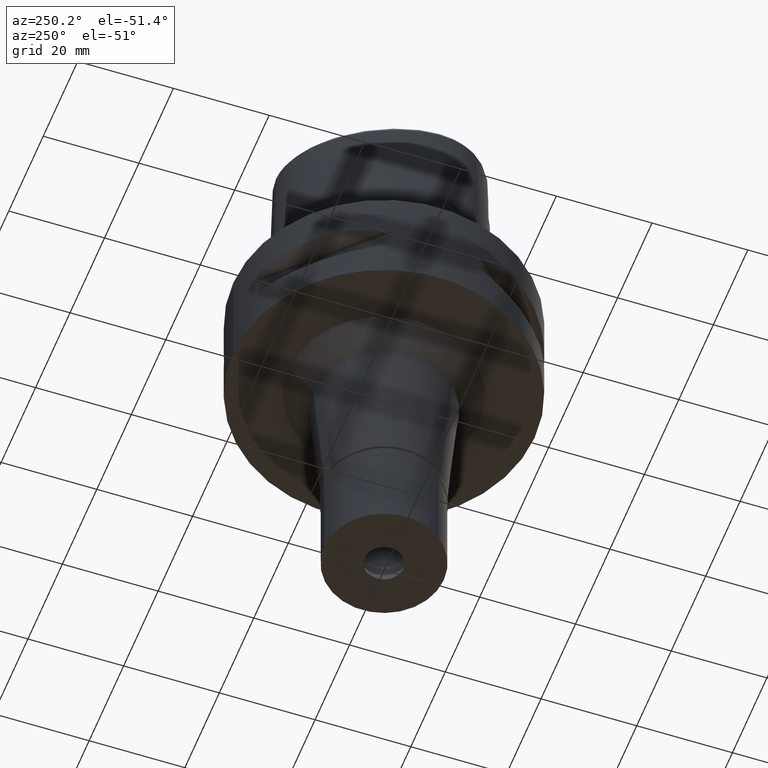
[diagram: clean part render]
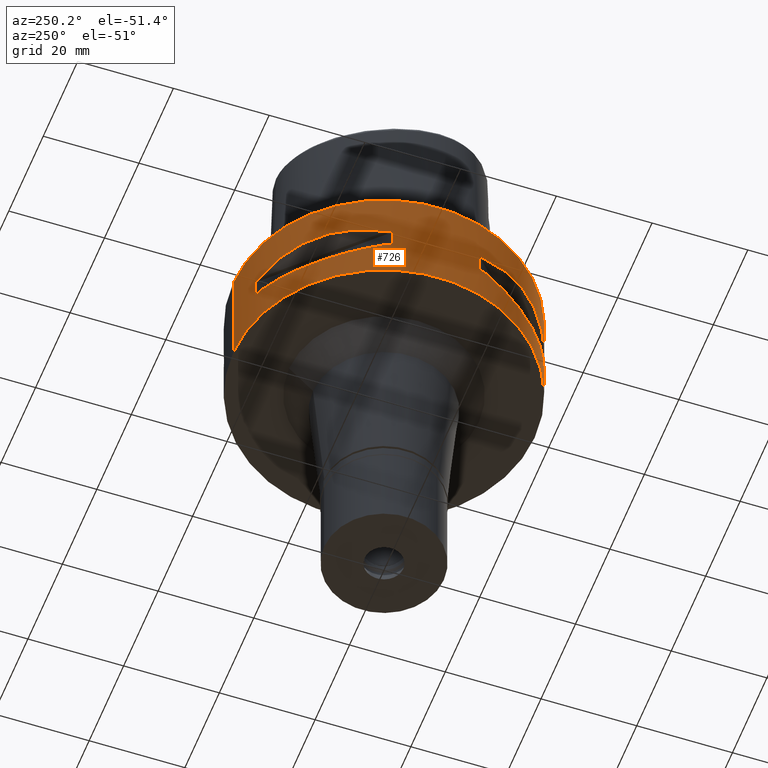
[diagram: same view with one face highlighted and labeled with its STEP entity id]
A machine part, auxiliary view. The second image highlights one B-rep face of the part: STEP entity #726.
In plain terms, the highlighted cylindrical surface (partial cylindrical patch) has radius 31.5 mm, axis along (0, 0, -1).
Its self-contained STEP definition (entity closure, byte-faithful):
#2 = CARTESIAN_POINT ( 'NONE',  ( -10.44775724750000023, 29.71690375017999841, -14.05000000000000071 ) ) ;
#17 = ORIENTED_EDGE ( 'NONE', *, *, #1456, .T. ) ;
#36 = DIRECTION ( 'NONE',  ( -0.3316748332540863653, 0.9433937698468619626, 0.0000000000000000000 ) ) ;
#76 = CARTESIAN_POINT ( 'NONE',  ( -28.91382665368626093, 12.73197616788979047, -14.65467361754097197 ) ) ;
#96 = CARTESIAN_POINT ( 'NONE',  ( -23.08532645888017854, 21.46242677077873751, -15.83938991065184076 ) ) ;
#119 = VERTEX_POINT ( 'NONE', #2406 ) ;
#149 = DIRECTION ( 'NONE',  ( 0.0000000000000000000, 0.0000000000000000000, -1.000000000000000000 ) ) ;
#158 = CARTESIAN_POINT ( 'NONE',  ( -17.14106442934810204, -26.42800887047570058, -15.43984550238532982 ) ) ;
#179 = VERTEX_POINT ( 'NONE', #1749 ) ;
#207 = VECTOR ( 'NONE', #2940, 1000.000000000000000 ) ;
#208 = EDGE_CURVE ( 'NONE', #3789, #1629, #4393, .T. ) ;
#209 = CARTESIAN_POINT ( 'NONE',  ( -27.64634172018421410, -15.11986997309601577, -15.11207862403482238 ) ) ;
#210 = CARTESIAN_POINT ( 'NONE',  ( 0.0000000000000000000, 1.266774649037999887E-14, -14.05000000000000071 ) ) ;
#226 = CARTESIAN_POINT ( 'NONE',  ( 0.0000000000000000000, 1.266774649037999887E-14, 0.0000000000000000000 ) ) ;
#256 = FACE_BOUND ( 'NONE', #2299, .T. ) ;
#296 = CIRCLE ( 'NONE', #4079, 31.50000000000001776 ) ;
#302 = VECTOR ( 'NONE', #3461, 1000.000000000000000 ) ;
#317 = CARTESIAN_POINT ( 'NONE',  ( 0.0000000000000000000, 1.266774649037999887E-14, 3.439999999999999947 ) ) ;
#324 = CARTESIAN_POINT ( 'NONE',  ( -30.19251670572000279, -8.981198972019999616, -9.950000000000001066 ) ) ;
#394 = CARTESIAN_POINT ( 'NONE',  ( -16.03138450077636534, 27.11872488589498786, -15.26880420107476333 ) ) ;
#427 = ORIENTED_EDGE ( 'NONE', *, *, #2201, .T. ) ;
#444 = B_SPLINE_CURVE_WITH_KNOTS ( 'NONE', 3,
 ( #2, #821, #4518, #2669, #394, #4592, #4543, #2694, #1865, #1940, #769, #1885, #96, #3403, #1590, #1518, #1153, #1200, #2340, #4173, #3459, #2286, #76, #3852 ),
 .UNSPECIFIED., .F., .F.,
 ( 4, 1, 1, 1, 1, 1, 2, 2, 2, 1, 1, 1, 1, 1, 2, 2, 4 ),
 ( 0.0000000000000000000, 0.1249999999999950040, 0.1874999999999924505, 0.2187499999999911737, 0.2343749999999902855, 0.2421874999999899802, 0.2460937499999900080, 0.2499999999999900080, 0.4999999999999917843, 0.6249999999999925615, 0.6874999999999925615, 0.7187499999999924505, 0.7343749999999926725, 0.7421874999999927836, 0.7460937499999928946, 0.7499999999999931166, 1.000000000000000000 ),
 .UNSPECIFIED. ) ;
#451 = CARTESIAN_POINT ( 'NONE',  ( -30.19251670572000279, 8.981198972019999616, -14.05000000000000071 ) ) ;
#477 = ORIENTED_EDGE ( 'NONE', *, *, #768, .T. ) ;
#500 = CARTESIAN_POINT ( 'NONE',  ( -17.35163608579889072, -26.29071741523761929, -15.46976201925527761 ) ) ;
#511 = CARTESIAN_POINT ( 'NONE',  ( -10.44775724750000023, -29.71690375017999841, -9.949999999998999201 ) ) ;
#528 = EDGE_LOOP ( 'NONE', ( #895, #2047, #17, #427 ) ) ;
#572 = DIRECTION ( 'NONE',  ( -0.3316748332540863653, -0.9433937698468619626, 0.0000000000000000000 ) ) ;
#581 = CARTESIAN_POINT ( 'NONE',  ( -29.71690375017999841, 10.44775724750000023, -9.949999999998999201 ) ) ;
#585 = VERTEX_POINT ( 'NONE', #2698 ) ;
#589 = CARTESIAN_POINT ( 'NONE',  ( -26.70521063584532229, -16.70616724745790549, -15.37546661817682292 ) ) ;
#664 = VECTOR ( 'NONE', #2925, 1000.000000000000000 ) ;
#726 = ADVANCED_FACE ( 'NONE', ( #2601, #256, #1042 ), #2177, .T. ) ;
#728 = EDGE_CURVE ( 'NONE', #1433, #4583, #2243, .T. ) ;
#731 = CARTESIAN_POINT ( 'NONE',  ( -30.19251670572000279, 8.981198972017999438, -9.950000000000001066 ) ) ;
#744 = CIRCLE ( 'NONE', #1928, 31.50000000000000711 ) ;
#763 = B_SPLINE_CURVE_WITH_KNOTS ( 'NONE', 3,
 ( #1274, #3977, #2752, #2365, #4643, #3953, #4350, #875, #3233, #581 ),
 .UNSPECIFIED., .F., .F.,
 ( 4, 2, 2, 2, 4 ),
 ( 0.0000000000000000000, 0.2500000000000000000, 0.5000000000000000000, 0.7500000000000000000, 1.000000000000000000 ),
 .UNSPECIFIED. ) ;
#768 = EDGE_CURVE ( 'NONE', #4063, #2687, #3121, .T. ) ;
#769 = CARTESIAN_POINT ( 'NONE',  ( -18.86897208073744991, 25.32725744467937545, -15.69588095933747240 ) ) ;
#821 = CARTESIAN_POINT ( 'NONE',  ( -11.58970337493613378, 29.31542262584994418, -14.35229357166721265 ) ) ;
#828 = CARTESIAN_POINT ( 'NONE',  ( -8.981198972019999616, 30.19251670572000279, -9.950000000000001066 ) ) ;
#840 = ORIENTED_EDGE ( 'NONE', *, *, #208, .F. ) ;
#860 = CARTESIAN_POINT ( 'NONE',  ( -21.46242677078364025, -23.08532645888299939, -15.83938991065501867 ) ) ;
#875 = CARTESIAN_POINT ( 'NONE',  ( -27.88210502980663819, 14.84430321584963330, -8.906184731949371880 ) ) ;
#886 = CARTESIAN_POINT ( 'NONE',  ( -20.18579225686653444, -24.23018836745773541, -15.78559396979401974 ) ) ;
#895 = ORIENTED_EDGE ( 'NONE', *, *, #1919, .T. ) ;
#934 = CARTESIAN_POINT ( 'NONE',  ( -29.71690375017999841, -10.44775724750000023, -9.949999999998999201 ) ) ;
#1002 = CARTESIAN_POINT ( 'NONE',  ( -29.71690375017999841, 10.44775724750000023, -14.05000000000000071 ) ) ;
#1025 = EDGE_CURVE ( 'NONE', #1824, #1292, #2191, .T. ) ;
#1042 = FACE_BOUND ( 'NONE', #1045, .T. ) ;
#1045 = EDGE_LOOP ( 'NONE', ( #4028, #4165, #2103, #4030, #4013, #2338, #2147, #1234 ) ) ;
#1071 = VECTOR ( 'NONE', #3992, 1000.000000000000000 ) ;
#1096 = EDGE_CURVE ( 'NONE', #3671, #1547, #444, .T. ) ;
#1101 = EDGE_CURVE ( 'NONE', #3058, #585, #3148, .T. ) ;
#1105 = DIRECTION ( 'NONE',  ( 0.0000000000000000000, 1.000000000000000000, 0.0000000000000000000 ) ) ;
#1126 = DIRECTION ( 'NONE',  ( 0.0000000000000000000, 0.0000000000000000000, 1.000000000000000000 ) ) ;
#1136 = EDGE_CURVE ( 'NONE', #3058, #4506, #2960, .T. ) ;
#1141 = AXIS2_PLACEMENT_3D ( 'NONE', #317, #1802, #3487 ) ;
#1153 = CARTESIAN_POINT ( 'NONE',  ( -26.29071741523646111, 17.35163608579689409, -15.46976201925398087 ) ) ;
#1168 = ORIENTED_EDGE ( 'NONE', *, *, #2002, .T. ) ;
#1173 = EDGE_CURVE ( 'NONE', #3789, #1547, #296, .T. ) ;
#1184 = CARTESIAN_POINT ( 'NONE',  ( 0.0000000000000000000, 1.266774649037999887E-14, -9.950000000000001066 ) ) ;
#1187 = CARTESIAN_POINT ( 'NONE',  ( -29.71690375017999841, 10.44775724750000023, -9.949999999998999201 ) ) ;
#1192 = ORIENTED_EDGE ( 'NONE', *, *, #3698, .T. ) ;
#1200 = CARTESIAN_POINT ( 'NONE',  ( -26.42800887047508240, 17.14106442934706820, -15.43984550238465836 ) ) ;
#1210 = DIRECTION ( 'NONE',  ( 0.0000000000000000000, 0.0000000000000000000, -1.000000000000000000 ) ) ;
#1234 = ORIENTED_EDGE ( 'NONE', *, *, #2401, .T. ) ;
#1235 = CARTESIAN_POINT ( 'NONE',  ( -29.31542262584746794, -11.58970337494326941, -14.35229357166913999 ) ) ;
#1271 = CARTESIAN_POINT ( 'NONE',  ( -25.37277178164059777, -18.81455742168903456, -8.309746333109711003 ) ) ;
#1274 = CARTESIAN_POINT ( 'NONE',  ( -10.44775724750000023, 29.71690375017999841, -9.949999999998999201 ) ) ;
#1283 = CARTESIAN_POINT ( 'NONE',  ( -10.44775724750000023, -29.71690375017999841, -14.05000000000000071 ) ) ;
#1292 = VERTEX_POINT ( 'NONE', #3074 ) ;
#1301 = VERTEX_POINT ( 'NONE', #3452 ) ;
#1306 = CARTESIAN_POINT ( 'NONE',  ( -14.89252659053665440, -27.86285265927818600, -15.10765629750852135 ) ) ;
#1316 = CARTESIAN_POINT ( 'NONE',  ( 0.0000000000000000000, 31.50000000000000000, 0.0000000000000000000 ) ) ;
#1350 = CARTESIAN_POINT ( 'NONE',  ( -8.981198972017999438, -30.19251670572000279, -14.05000000000000071 ) ) ;
#1377 = VECTOR ( 'NONE', #1868, 1000.000000000000000 ) ;
#1379 = ORIENTED_EDGE ( 'NONE', *, *, #3422, .T. ) ;
#1422 = CIRCLE ( 'NONE', #4120, 31.50000000000000711 ) ;
#1427 = ORIENTED_EDGE ( 'NONE', *, *, #1096, .F. ) ;
#1433 = VERTEX_POINT ( 'NONE', #324 ) ;
#1456 = EDGE_CURVE ( 'NONE', #1824, #179, #2967, .T. ) ;
#1499 = CARTESIAN_POINT ( 'NONE',  ( 0.0000000000000000000, 1.266774649037999887E-14, -14.05000000000000071 ) ) ;
#1518 = CARTESIAN_POINT ( 'NONE',  ( -26.01217882834653139, 17.76952662671834915, -15.52665221626015501 ) ) ;
#1547 = VERTEX_POINT ( 'NONE', #1002 ) ;
#1590 = CARTESIAN_POINT ( 'NONE',  ( -25.43927894891607622, 18.59229662064853983, -15.62866126334269623 ) ) ;
#1618 = CARTESIAN_POINT ( 'NONE',  ( -20.64154884324739214, -23.90617837150508507, -8.160613588476767433 ) ) ;
#1628 = B_SPLINE_CURVE_WITH_KNOTS ( 'NONE', 3,
 ( #1719, #1235, #2373, #209, #4292, #3590, #589, #4270, #4651, #3197, #2050, #4340, #860, #886, #3242, #3889, #500, #158, #4703, #3914, #2004, #1306, #4729, #1283 ),
 .UNSPECIFIED., .F., .F.,
 ( 4, 1, 1, 1, 1, 1, 2, 2, 2, 1, 1, 1, 1, 1, 2, 2, 4 ),
 ( 0.0000000000000000000, 0.1250000000000055511, 0.1875000000000083267, 0.2187500000000097977, 0.2343750000000106304, 0.2421875000000108247, 0.2460937500000108524, 0.2500000000000108802, 0.5000000000000087708, 0.6250000000000075495, 0.6875000000000071054, 0.7187500000000067724, 0.7343750000000066613, 0.7421875000000065503, 0.7460937500000062172, 0.7500000000000059952, 1.000000000000000000 ),
 .UNSPECIFIED. ) ;
#1629 = VERTEX_POINT ( 'NONE', #731 ) ;
#1710 = DIRECTION ( 'NONE',  ( 0.0000000000000000000, -1.000000000000000000, 0.0000000000000000000 ) ) ;
#1719 = CARTESIAN_POINT ( 'NONE',  ( -29.71690375017999841, -10.44775724750000023, -14.05000000000000071 ) ) ;
#1748 = ORIENTED_EDGE ( 'NONE', *, *, #1173, .T. ) ;
#1749 = CARTESIAN_POINT ( 'NONE',  ( 0.0000000000000000000, 31.50000000000000000, 0.0000000000000000000 ) ) ;
#1786 = EDGE_CURVE ( 'NONE', #1301, #585, #2180, .T. ) ;
#1802 = DIRECTION ( 'NONE',  ( 0.0000000000000000000, 0.0000000000000000000, -1.000000000000000000 ) ) ;
#1824 = VERTEX_POINT ( 'NONE', #2942 ) ;
#1865 = CARTESIAN_POINT ( 'NONE',  ( -16.86571563436579169, 26.60451452154777030, -15.39949295785988426 ) ) ;
#1868 = DIRECTION ( 'NONE',  ( 0.0000000000000000000, 0.0000000000000000000, -1.000000000000000000 ) ) ;
#1885 = CARTESIAN_POINT ( 'NONE',  ( -20.65093790435807364, 23.89673728056094859, -15.83935804902020550 ) ) ;
#1887 = DIRECTION ( 'NONE',  ( 0.0000000000000000000, 0.0000000000000000000, 1.000000000000000000 ) ) ;
#1897 = AXIS2_PLACEMENT_3D ( 'NONE', #1499, #1210, #36 ) ;
#1919 = EDGE_CURVE ( 'NONE', #1930, #1292, #4400, .T. ) ;
#1928 = AXIS2_PLACEMENT_3D ( 'NONE', #4545, #1126, #2988 ) ;
#1930 = VERTEX_POINT ( 'NONE', #4176 ) ;
#1940 = CARTESIAN_POINT ( 'NONE',  ( -16.89910283486545950, 26.58330558444438907, -15.40446471307224030 ) ) ;
#1948 = DIRECTION ( 'NONE',  ( 0.0000000000000000000, 0.0000000000000000000, 1.000000000000000000 ) ) ;
#1973 = EDGE_CURVE ( 'NONE', #1433, #2817, #3367, .T. ) ;
#1985 = B_SPLINE_CURVE_WITH_KNOTS ( 'NONE', 3,
 ( #2726, #4261, #4663, #1271, #2363, #1618, #4282, #3138, #3902, #511 ),
 .UNSPECIFIED., .F., .F.,
 ( 4, 2, 2, 2, 4 ),
 ( 0.0000000000000000000, 0.2499999999999999445, 0.4999999999999998890, 0.7499999999999997780, 1.000000000000000000 ),
 .UNSPECIFIED. ) ;
#2002 = EDGE_CURVE ( 'NONE', #3740, #1629, #744, .T. ) ;
#2004 = CARTESIAN_POINT ( 'NONE',  ( -16.96123479564984748, -26.54368690921626950, -15.41365572341332424 ) ) ;
#2015 = EDGE_CURVE ( 'NONE', #4063, #3272, #3010, .T. ) ;
#2047 = ORIENTED_EDGE ( 'NONE', *, *, #1025, .F. ) ;
#2050 = CARTESIAN_POINT ( 'NONE',  ( -25.32725744469575702, -18.86897208070564247, -15.69588095933118943 ) ) ;
#2103 = ORIENTED_EDGE ( 'NONE', *, *, #1136, .T. ) ;
#2147 = ORIENTED_EDGE ( 'NONE', *, *, #728, .T. ) ;
#2177 = CYLINDRICAL_SURFACE ( 'NONE', #1141, 31.50000000000000000 ) ;
#2180 = CIRCLE ( 'NONE', #4086, 31.50000000000000711 ) ;
#2191 = LINE ( 'NONE', #4478, #207 ) ;
#2201 = EDGE_CURVE ( 'NONE', #179, #1930, #2387, .T. ) ;
#2243 = CIRCLE ( 'NONE', #4695, 31.50000000000001776 ) ;
#2286 = CARTESIAN_POINT ( 'NONE',  ( -27.86285265926284893, 14.89252659058025685, -15.10765629752004813 ) ) ;
#2290 = CARTESIAN_POINT ( 'NONE',  ( -30.19251670572000279, -8.981198972017999438, -9.950000000000001066 ) ) ;
#2299 = EDGE_LOOP ( 'NONE', ( #1168, #840, #1748, #1427, #1192, #3415, #477, #1379 ) ) ;
#2338 = ORIENTED_EDGE ( 'NONE', *, *, #1973, .F. ) ;
#2340 = CARTESIAN_POINT ( 'NONE',  ( -26.48642424310458665, 17.05047092244234008, -15.42670883407647509 ) ) ;
#2350 = CARTESIAN_POINT ( 'NONE',  ( -10.44775724750000023, 29.71690375017999841, -14.05000000000000071 ) ) ;
#2363 = CARTESIAN_POINT ( 'NONE',  ( -23.90617837150508507, -20.64154884324739214, -8.160627831297874835 ) ) ;
#2365 = CARTESIAN_POINT ( 'NONE',  ( -18.81455742157509903, 25.37277178172508840, -8.309746333145048069 ) ) ;
#2373 = CARTESIAN_POINT ( 'NONE',  ( -28.62019653468943048, -13.25636937903484203, -14.74888225541266884 ) ) ;
#2387 = LINE ( 'NONE', #1316, #4710 ) ;
#2401 = EDGE_CURVE ( 'NONE', #4583, #1301, #1985, .T. ) ;
#2406 = CARTESIAN_POINT ( 'NONE',  ( -29.71690375017999841, -10.44775724750000023, -14.05000000000000071 ) ) ;
#2409 = AXIS2_PLACEMENT_3D ( 'NONE', #4526, #2704, #2628 ) ;
#2601 = FACE_OUTER_BOUND ( 'NONE', #528, .T. ) ;
#2615 = CARTESIAN_POINT ( 'NONE',  ( -30.19251670572000279, -8.981198972017999438, -14.05000000000000071 ) ) ;
#2628 = DIRECTION ( 'NONE',  ( -0.2851174276831918153, 0.9584925938322735872, 0.0000000000000000000 ) ) ;
#2669 = CARTESIAN_POINT ( 'NONE',  ( -15.11986997308662595, 27.64634172018752523, -15.11207862403231239 ) ) ;
#2687 = VERTEX_POINT ( 'NONE', #3721 ) ;
#2694 = CARTESIAN_POINT ( 'NONE',  ( -16.80193241490443157, 26.64486562695815053, -15.38992683735661515 ) ) ;
#2698 = CARTESIAN_POINT ( 'NONE',  ( -8.981198972017999438, -30.19251670572000279, -9.950000000000001066 ) ) ;
#2704 = DIRECTION ( 'NONE',  ( 0.0000000000000000000, 0.0000000000000000000, 1.000000000000000000 ) ) ;
#2726 = CARTESIAN_POINT ( 'NONE',  ( -29.71690375017999841, -10.44775724750000023, -9.949999999998999201 ) ) ;
#2752 = CARTESIAN_POINT ( 'NONE',  ( -14.84422749192772883, 27.88214534473898354, -8.906206096515610682 ) ) ;
#2817 = VERTEX_POINT ( 'NONE', #2615 ) ;
#2863 = CARTESIAN_POINT ( 'NONE',  ( -10.44775724750000023, -29.71690375017999841, -14.05000000000000071 ) ) ;
#2896 = CARTESIAN_POINT ( 'NONE',  ( -30.19251670572000279, 8.981198972017999438, -14.05000000000000071 ) ) ;
#2925 = DIRECTION ( 'NONE',  ( 0.0000000000000000000, 0.0000000000000000000, 1.000000000000000000 ) ) ;
#2940 = DIRECTION ( 'NONE',  ( 0.0000000000000000000, 0.0000000000000000000, -1.000000000000000000 ) ) ;
#2942 = CARTESIAN_POINT ( 'NONE',  ( 0.0000000000000000000, -31.50000000000000000, 0.0000000000000000000 ) ) ;
#2946 = CARTESIAN_POINT ( 'NONE',  ( -8.981198972019999616, -30.19251670572000279, -14.05000000000000071 ) ) ;
#2960 = CIRCLE ( 'NONE', #3676, 31.50000000000001776 ) ;
#2967 = CIRCLE ( 'NONE', #3922, 31.50000000000000000 ) ;
#2988 = DIRECTION ( 'NONE',  ( -0.9433937698468619626, 0.3316748332540863653, 0.0000000000000000000 ) ) ;
#3010 = LINE ( 'NONE', #4201, #1377 ) ;
#3047 = AXIS2_PLACEMENT_3D ( 'NONE', #3778, #1887, #1105 ) ;
#3058 = VERTEX_POINT ( 'NONE', #2946 ) ;
#3074 = CARTESIAN_POINT ( 'NONE',  ( 0.0000000000000000000, -31.50000000000000000, -22.00000000000000000 ) ) ;
#3121 = CIRCLE ( 'NONE', #2409, 31.50000000000001776 ) ;
#3138 = CARTESIAN_POINT ( 'NONE',  ( -14.84430321572443034, -27.88210502987327288, -8.906184731984689407 ) ) ;
#3148 = LINE ( 'NONE', #1350, #1071 ) ;
#3172 = DIRECTION ( 'NONE',  ( 0.0000000000000000000, 0.0000000000000000000, 1.000000000000000000 ) ) ;
#3197 = CARTESIAN_POINT ( 'NONE',  ( -26.58330558444411906, -16.89910283486596754, -15.40446471307235754 ) ) ;
#3201 = CARTESIAN_POINT ( 'NONE',  ( 0.0000000000000000000, 1.266774649037999887E-14, -9.950000000000001066 ) ) ;
#3223 = DIRECTION ( 'NONE',  ( -0.9584925938322735872, 0.2851174276831918153, 0.0000000000000000000 ) ) ;
#3233 = CARTESIAN_POINT ( 'NONE',  ( -28.92472615203844910, 12.70097436187914575, -9.353533115194341718 ) ) ;
#3242 = CARTESIAN_POINT ( 'NONE',  ( -18.59229662065495958, -25.43927894891979946, -15.62866126334684580 ) ) ;
#3272 = VERTEX_POINT ( 'NONE', #4456 ) ;
#3367 = LINE ( 'NONE', #2290, #302 ) ;
#3392 = DIRECTION ( 'NONE',  ( -0.9584925938322735872, -0.2851174276831918153, 0.0000000000000000000 ) ) ;
#3403 = CARTESIAN_POINT ( 'NONE',  ( -24.23018836745279714, 20.18579225685798306, -15.78559396978850415 ) ) ;
#3415 = ORIENTED_EDGE ( 'NONE', *, *, #2015, .F. ) ;
#3422 = EDGE_CURVE ( 'NONE', #2687, #3740, #763, .T. ) ;
#3452 = CARTESIAN_POINT ( 'NONE',  ( -10.44775724750000023, -29.71690375017999841, -9.949999999998999201 ) ) ;
#3459 = CARTESIAN_POINT ( 'NONE',  ( -26.54368690921649687, 16.96123479564916892, -15.41365572341313239 ) ) ;
#3461 = DIRECTION ( 'NONE',  ( 0.0000000000000000000, 0.0000000000000000000, -1.000000000000000000 ) ) ;
#3487 = DIRECTION ( 'NONE',  ( 0.0000000000000000000, -1.000000000000000000, 0.0000000000000000000 ) ) ;
#3590 = CARTESIAN_POINT ( 'NONE',  ( -26.84474411198783628, -16.48208282228858224, -15.34094883777952667 ) ) ;
#3612 = DIRECTION ( 'NONE',  ( 0.0000000000000000000, 0.0000000000000000000, -1.000000000000000000 ) ) ;
#3671 = VERTEX_POINT ( 'NONE', #2350 ) ;
#3676 = AXIS2_PLACEMENT_3D ( 'NONE', #4678, #4652, #4704 ) ;
#3698 = EDGE_CURVE ( 'NONE', #3671, #3272, #3880, .T. ) ;
#3721 = CARTESIAN_POINT ( 'NONE',  ( -10.44775724750000023, 29.71690375017999841, -9.949999999998999201 ) ) ;
#3740 = VERTEX_POINT ( 'NONE', #1187 ) ;
#3761 = DIRECTION ( 'NONE',  ( -0.9433937698468619626, -0.3316748332540863653, 0.0000000000000000000 ) ) ;
#3768 = EDGE_CURVE ( 'NONE', #119, #2817, #1422, .T. ) ;
#3778 = CARTESIAN_POINT ( 'NONE',  ( 0.0000000000000000000, 1.266774649037999887E-14, -22.00000000000000000 ) ) ;
#3782 = CARTESIAN_POINT ( 'NONE',  ( 0.0000000000000000000, 1.266774649037999887E-14, -14.05000000000000071 ) ) ;
#3789 = VERTEX_POINT ( 'NONE', #451 ) ;
#3811 = DIRECTION ( 'NONE',  ( 0.0000000000000000000, 0.0000000000000000000, -1.000000000000000000 ) ) ;
#3852 = CARTESIAN_POINT ( 'NONE',  ( -29.71690375017999841, 10.44775724750000023, -14.05000000000000071 ) ) ;
#3880 = CIRCLE ( 'NONE', #1897, 31.50000000000000711 ) ;
#3889 = CARTESIAN_POINT ( 'NONE',  ( -17.76952662672209371, -26.01217882834868433, -15.52665221626257264 ) ) ;
#3902 = CARTESIAN_POINT ( 'NONE',  ( -12.70097436179016981, -28.92472615206970588, -9.353533115217881999 ) ) ;
#3914 = CARTESIAN_POINT ( 'NONE',  ( -16.98999780422095540, -26.52527364208602734, -15.41788098766330783 ) ) ;
#3922 = AXIS2_PLACEMENT_3D ( 'NONE', #226, #4447, #1710 ) ;
#3936 = EDGE_CURVE ( 'NONE', #119, #4506, #1628, .T. ) ;
#3953 = CARTESIAN_POINT ( 'NONE',  ( -23.90617837143843971, 20.64154884331406237, -8.160613588453220046 ) ) ;
#3977 = CARTESIAN_POINT ( 'NONE',  ( -12.70092055726457225, 28.92474506846247451, -9.353547358238497367 ) ) ;
#3992 = DIRECTION ( 'NONE',  ( 0.0000000000000000000, 0.0000000000000000000, 1.000000000000000000 ) ) ;
#4013 = ORIENTED_EDGE ( 'NONE', *, *, #3768, .T. ) ;
#4028 = ORIENTED_EDGE ( 'NONE', *, *, #1786, .T. ) ;
#4030 = ORIENTED_EDGE ( 'NONE', *, *, #3936, .F. ) ;
#4063 = VERTEX_POINT ( 'NONE', #828 ) ;
#4079 = AXIS2_PLACEMENT_3D ( 'NONE', #210, #3612, #3223 ) ;
#4086 = AXIS2_PLACEMENT_3D ( 'NONE', #3201, #3172, #572 ) ;
#4120 = AXIS2_PLACEMENT_3D ( 'NONE', #3782, #3811, #3761 ) ;
#4165 = ORIENTED_EDGE ( 'NONE', *, *, #1101, .F. ) ;
#4173 = CARTESIAN_POINT ( 'NONE',  ( -26.52527364208584615, 16.98999780422065342, -15.41788098766309467 ) ) ;
#4176 = CARTESIAN_POINT ( 'NONE',  ( 0.0000000000000000000, 31.50000000000000000, -22.00000000000000000 ) ) ;
#4201 = CARTESIAN_POINT ( 'NONE',  ( -8.981198972017999438, 30.19251670572000279, -9.950000000000001066 ) ) ;
#4261 = CARTESIAN_POINT ( 'NONE',  ( -28.92474506843119286, -12.70092055735351266, -9.353547358214942875 ) ) ;
#4270 = CARTESIAN_POINT ( 'NONE',  ( -26.64486562695783789, -16.80193241490531975, -15.38992683735687272 ) ) ;
#4282 = CARTESIAN_POINT ( 'NONE',  ( -18.81462633026353970, -25.37272068403001413, -8.309724968614128571 ) ) ;
#4292 = CARTESIAN_POINT ( 'NONE',  ( -27.11872488589304453, -16.03138450078185429, -15.26880420107623237 ) ) ;
#4340 = CARTESIAN_POINT ( 'NONE',  ( -23.89673728055121416, -20.65093790435243193, -15.83935804901394739 ) ) ;
#4350 = CARTESIAN_POINT ( 'NONE',  ( -25.37272068394556257, 18.81462633037747167, -8.309724968578809268 ) ) ;
#4393 = LINE ( 'NONE', #2896, #664 ) ;
#4400 = CIRCLE ( 'NONE', #3047, 31.50000000000000000 ) ;
#4447 = DIRECTION ( 'NONE',  ( 0.0000000000000000000, 0.0000000000000000000, -1.000000000000000000 ) ) ;
#4456 = CARTESIAN_POINT ( 'NONE',  ( -8.981198972017999438, 30.19251670572000279, -14.05000000000000071 ) ) ;
#4478 = CARTESIAN_POINT ( 'NONE',  ( 0.0000000000000000000, -31.50000000000000000, 0.0000000000000000000 ) ) ;
#4506 = VERTEX_POINT ( 'NONE', #2863 ) ;
#4518 = CARTESIAN_POINT ( 'NONE',  ( -13.25636937902232404, 28.62019653469382163, -14.74888225540932751 ) ) ;
#4526 = CARTESIAN_POINT ( 'NONE',  ( 0.0000000000000000000, 1.266774649037999887E-14, -9.950000000000001066 ) ) ;
#4543 = CARTESIAN_POINT ( 'NONE',  ( -16.70616724745637072, 26.70521063584585164, -15.37546661817639126 ) ) ;
#4545 = CARTESIAN_POINT ( 'NONE',  ( 0.0000000000000000000, 1.266774649037999887E-14, -9.950000000000001066 ) ) ;
#4583 = VERTEX_POINT ( 'NONE', #934 ) ;
#4592 = CARTESIAN_POINT ( 'NONE',  ( -16.48208282228564769, 26.84474411198887012, -15.34094883777873619 ) ) ;
#4643 = CARTESIAN_POINT ( 'NONE',  ( -20.64154884331406237, 23.90617837143844682, -8.160627831321418668 ) ) ;
#4651 = CARTESIAN_POINT ( 'NONE',  ( -26.60451452154760332, -16.86571563436626064, -15.39949295786003347 ) ) ;
#4652 = DIRECTION ( 'NONE',  ( 0.0000000000000000000, 0.0000000000000000000, -1.000000000000000000 ) ) ;
#4663 = CARTESIAN_POINT ( 'NONE',  ( -27.88214534467230976, -14.84422749205291581, -8.906206096480268286 ) ) ;
#4678 = CARTESIAN_POINT ( 'NONE',  ( 0.0000000000000000000, 1.266774649037999887E-14, -14.05000000000000071 ) ) ;
#4695 = AXIS2_PLACEMENT_3D ( 'NONE', #1184, #1948, #3392 ) ;
#4703 = CARTESIAN_POINT ( 'NONE',  ( -17.05047092244293694, -26.48642424310493837, -15.42670883407686588 ) ) ;
#4704 = DIRECTION ( 'NONE',  ( -0.2851174276831918153, -0.9584925938322735872, 0.0000000000000000000 ) ) ;
#4710 = VECTOR ( 'NONE', #149, 1000.000000000000000 ) ;
#4729 = CARTESIAN_POINT ( 'NONE',  ( -12.73197616784617381, -28.91382665370159799, -14.65467361752943809 ) ) ;